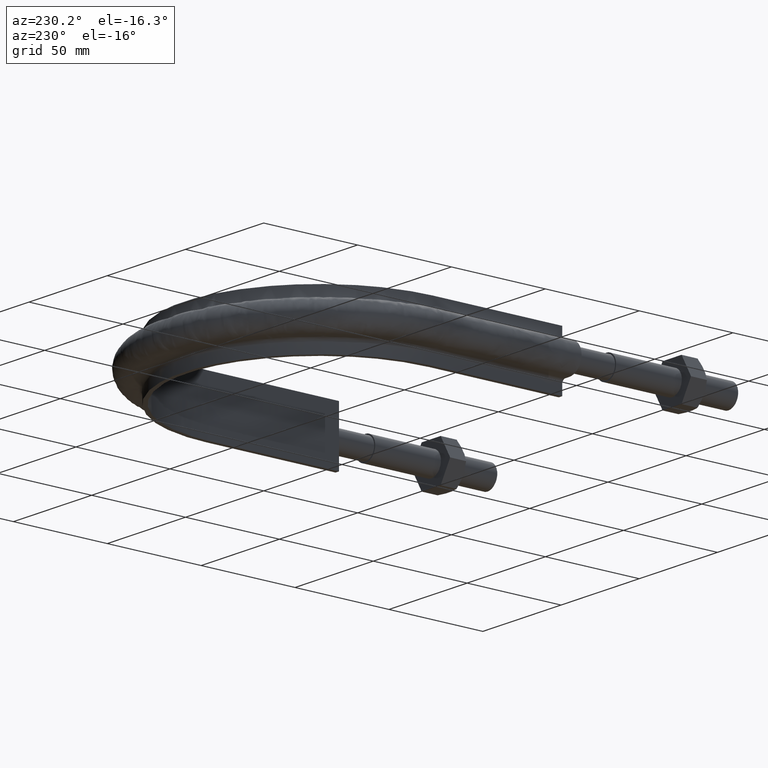
[diagram: clean part render]
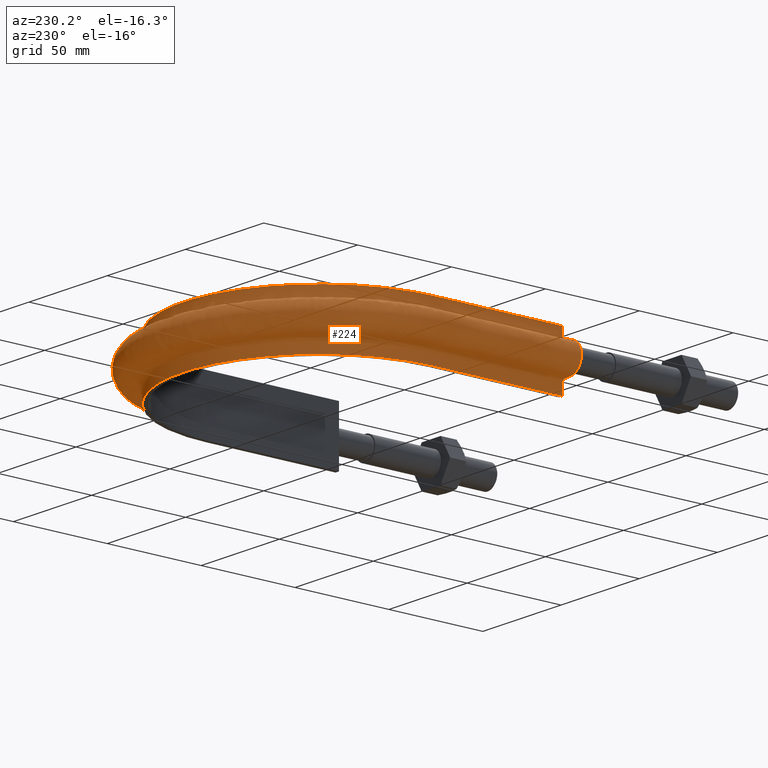
[diagram: same view with one face highlighted and labeled with its STEP entity id]
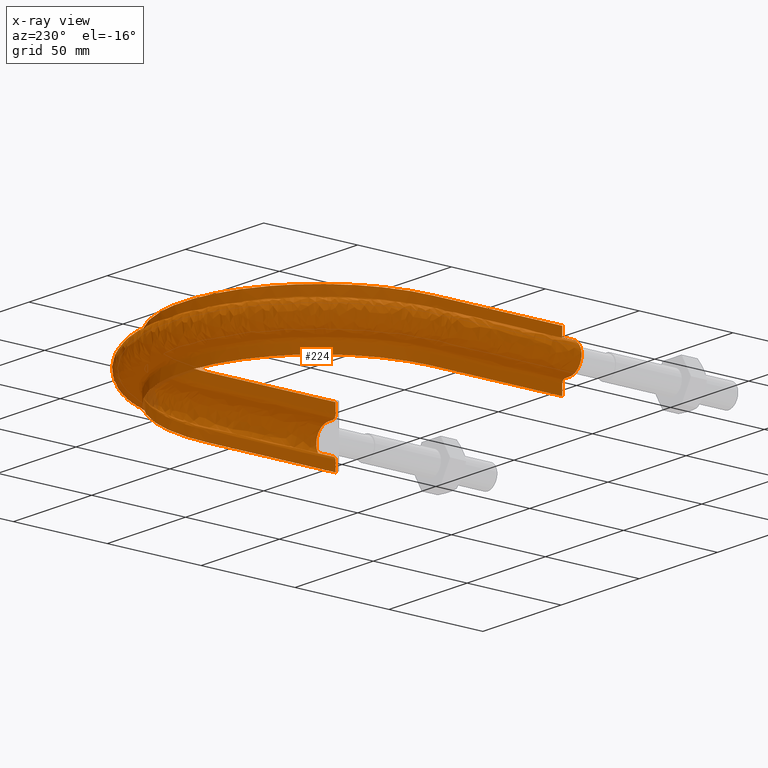
[diagram: x-ray of the same camera — body ghosted, the highlighted face saturated]
A machine part, auxiliary view. The second image highlights one B-rep face of the part: STEP entity #224.
The next image is the same camera in x-ray: the body ghosted, the highlighted face saturated — about 1% of this face is hidden behind the body in this view.
In plain terms, the highlighted face is a freeform B-spline surface patch.
Its self-contained STEP definition (entity closure, byte-faithful):
#224 = ADVANCED_FACE( '', ( #273 ), #274, .F. );
#273 = FACE_OUTER_BOUND( '', #551, .T. );
#274 = B_SPLINE_SURFACE_WITH_KNOTS( '', 3, 3, ( ( #552, #553, #554, #555, #556, #557, #558, #559, #560, #561, #562, #563, #564, #565, #566, #567 ), ( #568, #569, #570, #571, #572, #573, #574, #575, #576, #577, #578, #579, #580, #581, #582, #583 ), ( #584, #585, #586, #587, #588, #589, #590, #591, #592, #593, #594, #595, #596, #597, #598, #599 ), ( #600, #601, #602, #603, #604, #605, #606, #607, #608, #609, #610, #611, #612, #613, #614, #615 ), ( #616, #617, #618, #619, #620, #621, #622, #623, #624, #625, #626, #627, #628, #629, #630, #631 ), ( #632, #633, #634, #635, #636, #637, #638, #639, #640, #641, #642, #643, #644, #645, #646, #647 ), ( #648, #649, #650, #651, #652, #653, #654, #655, #656, #657, #658, #659, #660, #661, #662, #663 ), ( #664, #665, #666, #667, #668, #669, #670, #671, #672, #673, #674, #675, #676, #677, #678, #679 ), ( #680, #681, #682, #683, #684, #685, #686, #687, #688, #689, #690, #691, #692, #693, #694, #695 ), ( #696, #697, #698, #699, #700, #701, #702, #703, #704, #705, #706, #707, #708, #709, #710, #711 ), ( #712, #713, #714, #715, #716, #717, #718, #719, #720, #721, #722, #723, #724, #725, #726, #727 ), ( #728, #729, #730, #731, #732, #733, #734, #735, #736, #737, #738, #739, #740, #741, #742, #743 ), ( #744, #745, #746, #747, #748, #749, #750, #751, #752, #753, #754, #755, #756, #757, #758, #759 ), ( #760, #761, #762, #763, #764, #765, #766, #767, #768, #769, #770, #771, #772, #773, #774, #775 ), ( #776, #777, #778, #779, #780, #781, #782, #783, #784, #785, #786, #787, #788, #789, #790, #791 ), ( #792, #793, #794, #795, #796, #797, #798, #799, #800, #801, #802, #803, #804, #805, #806, #807 ), ( #808, #809, #810, #811, #812, #813, #814, #815, #816, #817, #818, #819, #820, #821, #822, #823 ), ( #824, #825, #826, #827, #828, #829, #830, #831, #832, #833, #834, #835, #836, #837, #838, #839 ), ( #840, #841, #842, #843, #844, #845, #846, #847, #848, #849, #850, #851, #852, #853, #854, #855 ), ( #856, #857, #858, #859, #860, #861, #862, #863, #864, #865, #866, #867, #868, #869, #870, #871 ), ( #872, #873, #874, #875, #876, #877, #878, #879, #880, #881, #882, #883, #884, #885, #886, #887 ), ( #888, #889, #890, #891, #892, #893, #894, #895, #896, #897, #898, #899, #900, #901, #902, #903 ), ( #904, #905, #906, #907, #908, #909, #910, #911, #912, #913, #914, #915, #916, #917, #918, #919 ), ( #920, #921, #922, #923, #924, #925, #926, #927, #928, #929, #930, #931, #932, #933, #934, #935 ), ( #936, #937, #938, #939, #940, #941, #942, #943, #944, #945, #946, #947, #948, #949, #950, #951 ), ( #952, #953, #954, #955, #956, #957, #958, #959, #960, #961, #962, #963, #964, #965, #966, #967 ), ( #968, #969, #970, #971, #972, #973, #974, #975, #976, #977, #978, #979, #980, #981, #982, #983 ), ( #984, #985, #986, #987, #988, #989, #990, #991, #992, #993, #994, #995, #996, #997, #998, #999 ), ( #1000, #1001, #1002, #1003, #1004, #1005, #1006, #1007, #1008, #1009, #1010, #1011, #1012, #1013, #1014, #1015 ), ( #1016, #1017, #1018, #1019, #1020, #1021, #1022, #1023, #1024, #1025, #1026, #1027, #1028, #1029, #1030, #1031 ), ( #1032, #1033, #1034, #1035, #1036, #1037, #1038, #1039, #1040, #1041, #1042, #1043, #1044, #1045, #1046, #1047 ) ), .UNSPECIFIED., .F., .F., .F., ( 4, 3, 1, 1, 1, 3, 3, 1, 1, 1, 3, 3, 1, 1, 1, 3, 4 ), ( 4, 3, 1, 1, 1, 1, 1, 1, 3, 4 ), ( 0.105263157894737, 0.157894736842105, 0.210526315789474, 0.263157894736842, 0.315789473684211, 0.368421052631579, 0.421052631578947, 0.473684210526316, 0.526315789473684, 0.578947368421053, 0.631578947368421, 0.684210526315789, 0.736842105263158, 0.789473684210526, 0.842105263157895, 0.894736842105263, 0.947368421052632 ), ( 0.000000000000000, 1.00000000000000, 2.00000000000000, 3.00000000000000, 4.00000000000000, 5.00000000000000, 6.00000000000000, 7.00000000000000, 8.00000000000000, 9.00000000000000 ), .UNSPECIFIED. );
#551 = EDGE_LOOP( '', ( #1356, #1357, #1358, #1359 ) );
#552 = CARTESIAN_POINT( '', ( 72.4500000000000, 84.7100000000000, -15.0000000000000 ) );
#553 = CARTESIAN_POINT( '', ( 72.4500000000000, 107.726666666667, -15.0000000000000 ) );
#554 = CARTESIAN_POINT( '', ( 72.4500000000000, 130.743333333333, -15.0000000000000 ) );
#555 = CARTESIAN_POINT( '', ( 72.4500000000000, 153.760000000000, -15.0000000000000 ) );
#556 = CARTESIAN_POINT( '', ( 72.4500000000000, 164.584175230504, -15.0000000000000 ) );
#557 = CARTESIAN_POINT( '', ( 67.5035108460798, 186.273453800089, -15.0000000000000 ) );
#558 = CARTESIAN_POINT( '', ( 46.7138789159023, 212.335910248336, -15.0000000000000 ) );
#559 = CARTESIAN_POINT( '', ( 16.6719903583027, 226.805050635421, -15.0000000000000 ) );
#560 = CARTESIAN_POINT( '', ( -16.6719903583025, 226.805050635421, -15.0000000000000 ) );
#561 = CARTESIAN_POINT( '', ( -46.7138789159022, 212.335910248336, -15.0000000000000 ) );
#562 = CARTESIAN_POINT( '', ( -67.5035108460798, 186.273453800089, -15.0000000000000 ) );
#563 = CARTESIAN_POINT( '', ( -72.4500000000000, 164.584175230504, -15.0000000000000 ) );
#564 = CARTESIAN_POINT( '', ( -72.4500000000000, 153.760000000000, -15.0000000000000 ) );
#565 = CARTESIAN_POINT( '', ( -72.4500000000000, 130.743333333333, -15.0000000000000 ) );
#566 = CARTESIAN_POINT( '', ( -72.4500000000000, 107.726666666667, -15.0000000000000 ) );
#567 = CARTESIAN_POINT( '', ( -72.4500000000000, 84.7100000000000, -15.0000000000000 ) );
#568 = CARTESIAN_POINT( '', ( 72.4500000000000, 84.7100000000000, -13.2666666666667 ) );
#569 = CARTESIAN_POINT( '', ( 72.4500000000000, 107.726666666667, -13.2666666666667 ) );
#570 = CARTESIAN_POINT( '', ( 72.4500000000000, 130.743333333333, -13.2666666666667 ) );
#571 = CARTESIAN_POINT( '', ( 72.4500000000000, 153.760000000000, -13.2666666666667 ) );
#572 = CARTESIAN_POINT( '', ( 72.4500000000000, 164.584175230504, -13.2666666666667 ) );
#573 = CARTESIAN_POINT( '', ( 67.5035108460798, 186.273453800089, -13.2666666666667 ) );
#574 = CARTESIAN_POINT( '', ( 46.7138789159023, 212.335910248336, -13.2666666666667 ) );
#575 = CARTESIAN_POINT( '', ( 16.6719903583027, 226.805050635421, -13.2666666666667 ) );
#576 = CARTESIAN_POINT( '', ( -16.6719903583025, 226.805050635421, -13.2666666666667 ) );
#577 = CARTESIAN_POINT( '', ( -46.7138789159022, 212.335910248336, -13.2666666666667 ) );
#578 = CARTESIAN_POINT( '', ( -67.5035108460798, 186.273453800089, -13.2666666666667 ) );
#579 = CARTESIAN_POINT( '', ( -72.4500000000000, 164.584175230504, -13.2666666666667 ) );
#580 = CARTESIAN_POINT( '', ( -72.4500000000000, 153.760000000000, -13.2666666666667 ) );
#581 = CARTESIAN_POINT( '', ( -72.4500000000000, 130.743333333333, -13.2666666666667 ) );
#582 = CARTESIAN_POINT( '', ( -72.4500000000000, 107.726666666667, -13.2666666666667 ) );
#583 = CARTESIAN_POINT( '', ( -72.4500000000000, 84.7100000000000, -13.2666666666667 ) );
#584 = CARTESIAN_POINT( '', ( 72.4500000000000, 84.7100000000000, -11.5333333333333 ) );
#585 = CARTESIAN_POINT( '', ( 72.4500000000000, 107.726666666667, -11.5333333333333 ) );
#586 = CARTESIAN_POINT( '', ( 72.4500000000000, 130.743333333333, -11.5333333333333 ) );
#587 = CARTESIAN_POINT( '', ( 72.4500000000000, 153.760000000000, -11.5333333333333 ) );
#588 = CARTESIAN_POINT( '', ( 72.4500000000000, 164.584175230504, -11.5333333333333 ) );
#589 = CARTESIAN_POINT( '', ( 67.5035108460798, 186.273453800089, -11.5333333333333 ) );
#590 = CARTESIAN_POINT( '', ( 46.7138789159023, 212.335910248336, -11.5333333333333 ) );
#591 = CARTESIAN_POINT( '', ( 16.6719903583027, 226.805050635421, -11.5333333333333 ) );
#592 = CARTESIAN_POINT( '', ( -16.6719903583025, 226.805050635421, -11.5333333333333 ) );
#593 = CARTESIAN_POINT( '', ( -46.7138789159022, 212.335910248336, -11.5333333333333 ) );
#594 = CARTESIAN_POINT( '', ( -67.5035108460798, 186.273453800089, -11.5333333333333 ) );
#595 = CARTESIAN_POINT( '', ( -72.4500000000000, 164.584175230504, -11.5333333333333 ) );
#596 = CARTESIAN_POINT( '', ( -72.4500000000000, 153.760000000000, -11.5333333333333 ) );
#597 = CARTESIAN_POINT( '', ( -72.4500000000000, 130.743333333333, -11.5333333333333 ) );
#598 = CARTESIAN_POINT( '', ( -72.4500000000000, 107.726666666667, -11.5333333333333 ) );
#599 = CARTESIAN_POINT( '', ( -72.4500000000000, 84.7100000000000, -11.5333333333333 ) );
#600 = CARTESIAN_POINT( '', ( 72.4500000000000, 84.7100000000000, -9.79999999999999 ) );
#601 = CARTESIAN_POINT( '', ( 72.4500000000000, 107.726666666667, -9.79999999999999 ) );
#602 = CARTESIAN_POINT( '', ( 72.4500000000000, 130.743333333333, -9.79999999999999 ) );
#603 = CARTESIAN_POINT( '', ( 72.4500000000000, 153.760000000000, -9.79999999999999 ) );
#604 = CARTESIAN_POINT( '', ( 72.4500000000000, 164.584175230504, -9.79999999999999 ) );
#605 = CARTESIAN_POINT( '', ( 67.5035108460798, 186.273453800089, -9.80000000000000 ) );
#606 = CARTESIAN_POINT( '', ( 46.7138789159023, 212.335910248336, -9.79999999999998 ) );
#607 = CARTESIAN_POINT( '', ( 16.6719903583027, 226.805050635421, -9.80000000000000 ) );
#608 = CARTESIAN_POINT( '', ( -16.6719903583025, 226.805050635421, -9.79999999999999 ) );
#609 = CARTESIAN_POINT( '', ( -46.7138789159022, 212.335910248336, -9.79999999999999 ) );
#610 = CARTESIAN_POINT( '', ( -67.5035108460798, 186.273453800089, -9.79999999999999 ) );
#611 = CARTESIAN_POINT( '', ( -72.4500000000000, 164.584175230504, -9.79999999999999 ) );
#612 = CARTESIAN_POINT( '', ( -72.4500000000000, 153.760000000000, -9.79999999999999 ) );
#613 = CARTESIAN_POINT( '', ( -72.4500000000000, 130.743333333333, -9.79999999999999 ) );
#614 = CARTESIAN_POINT( '', ( -72.4500000000000, 107.726666666667, -9.79999999999999 ) );
#615 = CARTESIAN_POINT( '', ( -72.4500000000000, 84.7100000000000, -9.79999999999999 ) );
#616 = CARTESIAN_POINT( '', ( 72.4500000000000, 84.7100000000000, -9.53823584172332 ) );
#617 = CARTESIAN_POINT( '', ( 72.4500000000000, 107.726666666667, -9.53823584172332 ) );
#618 = CARTESIAN_POINT( '', ( 72.4500000000000, 130.743333333333, -9.53823584172332 ) );
#619 = CARTESIAN_POINT( '', ( 72.4500000000000, 153.760000000000, -9.53823584172332 ) );
#620 = CARTESIAN_POINT( '', ( 72.4500000000000, 164.584175230504, -9.53823584172332 ) );
#621 = CARTESIAN_POINT( '', ( 67.5035108460798, 186.273453800089, -9.53823584172334 ) );
#622 = CARTESIAN_POINT( '', ( 46.7138789159023, 212.335910248336, -9.53823584172331 ) );
#623 = CARTESIAN_POINT( '', ( 16.6719903583027, 226.805050635421, -9.53823584172333 ) );
#624 = CARTESIAN_POINT( '', ( -16.6719903583025, 226.805050635421, -9.53823584172332 ) );
#625 = CARTESIAN_POINT( '', ( -46.7138789159022, 212.335910248336, -9.53823584172333 ) );
#626 = CARTESIAN_POINT( '', ( -67.5035108460798, 186.273453800089, -9.53823584172333 ) );
#627 = CARTESIAN_POINT( '', ( -72.4500000000000, 164.584175230504, -9.53823584172332 ) );
#628 = CARTESIAN_POINT( '', ( -72.4500000000000, 153.760000000000, -9.53823584172332 ) );
#629 = CARTESIAN_POINT( '', ( -72.4500000000000, 130.743333333333, -9.53823584172332 ) );
#630 = CARTESIAN_POINT( '', ( -72.4500000000000, 107.726666666667, -9.53823584172332 ) );
#631 = CARTESIAN_POINT( '', ( -72.4500000000000, 84.7100000000000, -9.53823584172332 ) );
#632 = CARTESIAN_POINT( '', ( 72.5541362568359, 84.7100000000000, -9.01470752517000 ) );
#633 = CARTESIAN_POINT( '', ( 72.5541362568359, 107.726666666667, -9.01470752517000 ) );
#634 = CARTESIAN_POINT( '', ( 72.5541362568359, 130.743333333333, -9.01470752517000 ) );
#635 = CARTESIAN_POINT( '', ( 72.5541362568359, 153.760000000000, -9.01470752517000 ) );
#636 = CARTESIAN_POINT( '', ( 72.5541362568359, 164.600020844551, -9.01470752517000 ) );
#637 = CARTESIAN_POINT( '', ( 67.6005372497071, 186.320053916949, -9.01470752517001 ) );
#638 = CARTESIAN_POINT( '', ( 46.7810232705274, 212.420139589218, -9.01470752516999 ) );
#639 = CARTESIAN_POINT( '', ( 16.6959539010206, 226.910035179395, -9.01470752517000 ) );
#640 = CARTESIAN_POINT( '', ( -16.6959539010205, 226.910035179395, -9.01470752517000 ) );
#641 = CARTESIAN_POINT( '', ( -46.7810232705273, 212.420139589218, -9.01470752517000 ) );
#642 = CARTESIAN_POINT( '', ( -67.6005372497070, 186.320053916949, -9.01470752517000 ) );
#643 = CARTESIAN_POINT( '', ( -72.5541362568359, 164.600020844551, -9.01470752517000 ) );
#644 = CARTESIAN_POINT( '', ( -72.5541362568359, 153.760000000000, -9.01470752517000 ) );
#645 = CARTESIAN_POINT( '', ( -72.5541362568359, 130.743333333333, -9.01470752517000 ) );
#646 = CARTESIAN_POINT( '', ( -72.5541362568359, 107.726666666667, -9.01470752517000 ) );
#647 = CARTESIAN_POINT( '', ( -72.5541362568359, 84.7100000000000, -9.01470752517000 ) );
#648 = CARTESIAN_POINT( '', ( 72.9989687109389, 84.7100000000000, -8.34896871093886 ) );
#649 = CARTESIAN_POINT( '', ( 72.9989687109389, 107.726666666667, -8.34896871093886 ) );
#650 = CARTESIAN_POINT( '', ( 72.9989687109389, 130.743333333333, -8.34896871093886 ) );
#651 = CARTESIAN_POINT( '', ( 72.9989687109389, 153.760000000000, -8.34896871093886 ) );
#652 = CARTESIAN_POINT( '', ( 72.9989687109389, 164.667707581115, -8.34896871093886 ) );
#653 = CARTESIAN_POINT( '', ( 68.0149989804211, 186.519112774777, -8.34896871093888 ) );
#654 = CARTESIAN_POINT( '', ( 47.0678396873504, 212.779936892776, -8.34896871093885 ) );
#655 = CARTESIAN_POINT( '', ( 16.7983174950284, 227.358491209583, -8.34896871093887 ) );
#656 = CARTESIAN_POINT( '', ( -16.7983174950283, 227.358491209583, -8.34896871093886 ) );
#657 = CARTESIAN_POINT( '', ( -47.0678396873504, 212.779936892776, -8.34896871093886 ) );
#658 = CARTESIAN_POINT( '', ( -68.0149989804210, 186.519112774777, -8.34896871093886 ) );
#659 = CARTESIAN_POINT( '', ( -72.9989687109389, 164.667707581115, -8.34896871093886 ) );
#660 = CARTESIAN_POINT( '', ( -72.9989687109388, 153.760000000000, -8.34896871093886 ) );
#661 = CARTESIAN_POINT( '', ( -72.9989687109388, 130.743333333333, -8.34896871093886 ) );
#662 = CARTESIAN_POINT( '', ( -72.9989687109388, 107.726666666667, -8.34896871093886 ) );
#663 = CARTESIAN_POINT( '', ( -72.9989687109389, 84.7100000000000, -8.34896871093886 ) );
#664 = CARTESIAN_POINT( '', ( 73.6647075251700, 84.7100000000000, -7.90413625683590 ) );
#665 = CARTESIAN_POINT( '', ( 73.6647075251700, 107.726666666667, -7.90413625683590 ) );
#666 = CARTESIAN_POINT( '', ( 73.6647075251700, 130.743333333333, -7.90413625683590 ) );
#667 = CARTESIAN_POINT( '', ( 73.6647075251700, 153.760000000000, -7.90413625683590 ) );
#668 = CARTESIAN_POINT( '', ( 73.6647075251700, 164.769007941112, -7.90413625683590 ) );
#669 = CARTESIAN_POINT( '', ( 68.6352847950119, 186.817025408512, -7.90413625683591 ) );
#670 = CARTESIAN_POINT( '', ( 47.4970907895949, 213.318411610672, -7.90413625683589 ) );
#671 = CARTESIAN_POINT( '', ( 16.9515154397077, 228.029653088664, -7.90413625683590 ) );
#672 = CARTESIAN_POINT( '', ( -16.9515154397075, 228.029653088664, -7.90413625683589 ) );
#673 = CARTESIAN_POINT( '', ( -47.4970907895948, 213.318411610672, -7.90413625683590 ) );
#674 = CARTESIAN_POINT( '', ( -68.6352847950119, 186.817025408512, -7.90413625683590 ) );
#675 = CARTESIAN_POINT( '', ( -73.6647075251700, 164.769007941112, -7.90413625683590 ) );
#676 = CARTESIAN_POINT( '', ( -73.6647075251700, 153.760000000000, -7.90413625683590 ) );
#677 = CARTESIAN_POINT( '', ( -73.6647075251700, 130.743333333333, -7.90413625683590 ) );
#678 = CARTESIAN_POINT( '', ( -73.6647075251700, 107.726666666667, -7.90413625683590 ) );
#679 = CARTESIAN_POINT( '', ( -73.6647075251700, 84.7100000000000, -7.90413625683590 ) );
#680 = CARTESIAN_POINT( '', ( 74.1882358417234, 84.7100000000000, -7.79999999999999 ) );
#681 = CARTESIAN_POINT( '', ( 74.1882358417233, 107.726666666667, -7.79999999999999 ) );
#682 = CARTESIAN_POINT( '', ( 74.1882358417233, 130.743333333333, -7.79999999999999 ) );
#683 = CARTESIAN_POINT( '', ( 74.1882358417234, 153.760000000000, -7.79999999999999 ) );
#684 = CARTESIAN_POINT( '', ( 74.1882358417234, 164.848669222387, -7.79999999999999 ) );
#685 = CARTESIAN_POINT( '', ( 69.1230694657461, 187.051300016339, -7.80000000000000 ) );
#686 = CARTESIAN_POINT( '', ( 47.8346482552749, 213.741861102486, -7.79999999999998 ) );
#687 = CARTESIAN_POINT( '', ( 17.0719883043850, 228.557446032652, -7.80000000000000 ) );
#688 = CARTESIAN_POINT( '', ( -17.0719883043849, 228.557446032652, -7.79999999999998 ) );
#689 = CARTESIAN_POINT( '', ( -47.8346482552749, 213.741861102486, -7.79999999999999 ) );
#690 = CARTESIAN_POINT( '', ( -69.1230694657460, 187.051300016339, -7.79999999999999 ) );
#691 = CARTESIAN_POINT( '', ( -74.1882358417233, 164.848669222387, -7.79999999999999 ) );
#692 = CARTESIAN_POINT( '', ( -74.1882358417233, 153.760000000000, -7.79999999999999 ) );
#693 = CARTESIAN_POINT( '', ( -74.1882358417233, 130.743333333333, -7.79999999999999 ) );
#694 = CARTESIAN_POINT( '', ( -74.1882358417233, 107.726666666667, -7.79999999999999 ) );
#695 = CARTESIAN_POINT( '', ( -74.1882358417233, 84.7100000000000, -7.79999999999999 ) );
#696 = CARTESIAN_POINT( '', ( 74.4500000000000, 84.7100000000000, -7.79999999999999 ) );
#697 = CARTESIAN_POINT( '', ( 74.4500000000000, 107.726666666667, -7.79999999999999 ) );
#698 = CARTESIAN_POINT( '', ( 74.4500000000000, 130.743333333333, -7.79999999999999 ) );
#699 = CARTESIAN_POINT( '', ( 74.4500000000000, 153.760000000000, -7.79999999999999 ) );
#700 = CARTESIAN_POINT( '', ( 74.4500000000000, 164.888499863024, -7.79999999999999 ) );
#701 = CARTESIAN_POINT( '', ( 69.3669618011131, 187.168437320253, -7.80000000000000 ) );
#702 = CARTESIAN_POINT( '', ( 48.0034269881149, 213.953585848393, -7.79999999999998 ) );
#703 = CARTESIAN_POINT( '', ( 17.1322247367237, 228.821342504646, -7.80000000000000 ) );
#704 = CARTESIAN_POINT( '', ( -17.1322247367236, 228.821342504646, -7.79999999999998 ) );
#705 = CARTESIAN_POINT( '', ( -48.0034269881148, 213.953585848393, -7.79999999999999 ) );
#706 = CARTESIAN_POINT( '', ( -69.3669618011131, 187.168437320253, -7.79999999999999 ) );
#707 = CARTESIAN_POINT( '', ( -74.4500000000000, 164.888499863024, -7.79999999999999 ) );
#708 = CARTESIAN_POINT( '', ( -74.4500000000000, 153.760000000000, -7.79999999999999 ) );
#709 = CARTESIAN_POINT( '', ( -74.4500000000000, 130.743333333333, -7.79999999999999 ) );
#710 = CARTESIAN_POINT( '', ( -74.4500000000000, 107.726666666667, -7.79999999999999 ) );
#711 = CARTESIAN_POINT( '', ( -74.4500000000000, 84.7100000000000, -7.79999999999999 ) );
#712 = CARTESIAN_POINT( '', ( 75.3000000000000, 84.7100000000000, -7.79999999999999 ) );
#713 = CARTESIAN_POINT( '', ( 75.3000000000000, 107.726666666667, -7.79999999999999 ) );
#714 = CARTESIAN_POINT( '', ( 75.3000000000000, 130.743333333333, -7.79999999999999 ) );
#715 = CARTESIAN_POINT( '', ( 75.3000000000000, 153.760000000000, -7.79999999999999 ) );
#716 = CARTESIAN_POINT( '', ( 75.3000000000000, 165.017837831845, -7.79999999999999 ) );
#717 = CARTESIAN_POINT( '', ( 70.1589284570022, 187.548805316322, -7.80000000000000 ) );
#718 = CARTESIAN_POINT( '', ( 48.5514849188053, 214.641097978417, -7.79999999999998 ) );
#719 = CARTESIAN_POINT( '', ( 17.3278243475527, 229.678266549066, -7.80000000000000 ) );
#720 = CARTESIAN_POINT( '', ( -17.3278243475525, 229.678266549066, -7.79999999999999 ) );
#721 = CARTESIAN_POINT( '', ( -48.5514849188052, 214.641097978417, -7.79999999999999 ) );
#722 = CARTESIAN_POINT( '', ( -70.1589284570022, 187.548805316322, -7.79999999999999 ) );
#723 = CARTESIAN_POINT( '', ( -75.3000000000000, 165.017837831845, -7.79999999999999 ) );
#724 = CARTESIAN_POINT( '', ( -75.3000000000000, 153.760000000000, -7.79999999999999 ) );
#725 = CARTESIAN_POINT( '', ( -75.3000000000000, 130.743333333333, -7.79999999999999 ) );
#726 = CARTESIAN_POINT( '', ( -75.3000000000000, 107.726666666667, -7.79999999999999 ) );
#727 = CARTESIAN_POINT( '', ( -75.3000000000000, 84.7100000000000, -7.79999999999999 ) );
#728 = CARTESIAN_POINT( '', ( 76.1500000000000, 84.7100000000000, -7.79999999999999 ) );
#729 = CARTESIAN_POINT( '', ( 76.1500000000000, 107.726666666667, -7.79999999999999 ) );
#730 = CARTESIAN_POINT( '', ( 76.1500000000000, 130.743333333333, -7.79999999999999 ) );
#731 = CARTESIAN_POINT( '', ( 76.1500000000000, 153.760000000000, -7.79999999999999 ) );
#732 = CARTESIAN_POINT( '', ( 76.1500000000000, 165.147175800666, -7.79999999999999 ) );
#733 = CARTESIAN_POINT( '', ( 70.9508951128914, 187.929173312392, -7.80000000000000 ) );
#734 = CARTESIAN_POINT( '', ( 49.0995428494957, 215.328610108441, -7.79999999999998 ) );
#735 = CARTESIAN_POINT( '', ( 17.5234239583816, 230.535190593487, -7.80000000000000 ) );
#736 = CARTESIAN_POINT( '', ( -17.5234239583815, 230.535190593487, -7.79999999999999 ) );
#737 = CARTESIAN_POINT( '', ( -49.0995428494956, 215.328610108441, -7.79999999999999 ) );
#738 = CARTESIAN_POINT( '', ( -70.9508951128913, 187.929173312392, -7.79999999999999 ) );
#739 = CARTESIAN_POINT( '', ( -76.1500000000000, 165.147175800666, -7.79999999999999 ) );
#740 = CARTESIAN_POINT( '', ( -76.1500000000000, 153.760000000000, -7.79999999999999 ) );
#741 = CARTESIAN_POINT( '', ( -76.1500000000000, 130.743333333333, -7.79999999999999 ) );
#742 = CARTESIAN_POINT( '', ( -76.1500000000000, 107.726666666667, -7.79999999999999 ) );
#743 = CARTESIAN_POINT( '', ( -76.1500000000000, 84.7100000000000, -7.79999999999999 ) );
#744 = CARTESIAN_POINT( '', ( 77.0000000000000, 84.7100000000000, -7.79999999999999 ) );
#745 = CARTESIAN_POINT( '', ( 77.0000000000000, 107.726666666667, -7.79999999999999 ) );
#746 = CARTESIAN_POINT( '', ( 77.0000000000000, 130.743333333333, -7.79999999999999 ) );
#747 = CARTESIAN_POINT( '', ( 77.0000000000000, 153.760000000000, -7.79999999999999 ) );
#748 = CARTESIAN_POINT( '', ( 77.0000000000001, 165.276513769487, -7.79999999999999 ) );
#749 = CARTESIAN_POINT( '', ( 71.7428617687805, 188.309541308462, -7.80000000000000 ) );
#750 = CARTESIAN_POINT( '', ( 49.6476007801860, 216.016122238465, -7.79999999999998 ) );
#751 = CARTESIAN_POINT( '', ( 17.7190235692106, 231.392114637907, -7.80000000000000 ) );
#752 = CARTESIAN_POINT( '', ( -17.7190235692104, 231.392114637907, -7.79999999999999 ) );
#753 = CARTESIAN_POINT( '', ( -49.6476007801860, 216.016122238465, -7.79999999999999 ) );
#754 = CARTESIAN_POINT( '', ( -71.7428617687805, 188.309541308462, -7.79999999999999 ) );
#755 = CARTESIAN_POINT( '', ( -77.0000000000000, 165.276513769487, -7.79999999999999 ) );
#756 = CARTESIAN_POINT( '', ( -77.0000000000000, 153.760000000000, -7.79999999999999 ) );
#757 = CARTESIAN_POINT( '', ( -77.0000000000000, 130.743333333333, -7.79999999999999 ) );
#758 = CARTESIAN_POINT( '', ( -77.0000000000000, 107.726666666667, -7.79999999999999 ) );
#759 = CARTESIAN_POINT( '', ( -77.0000000000000, 84.7100000000000, -7.79999999999999 ) );
#760 = CARTESIAN_POINT( '', ( 79.0373902247172, 84.7100000000000, -7.79999999999997 ) );
#761 = CARTESIAN_POINT( '', ( 79.0373902247172, 107.726666666667, -7.79999999999997 ) );
#762 = CARTESIAN_POINT( '', ( 79.0373902247172, 130.743333333333, -7.79999999999997 ) );
#763 = CARTESIAN_POINT( '', ( 79.0373902247172, 153.760000000000, -7.79999999999997 ) );
#764 = CARTESIAN_POINT( '', ( 79.0373902247172, 165.586527785206, -7.79999999999997 ) );
#765 = CARTESIAN_POINT( '', ( 73.6411501487929, 189.221256646094, -7.79999999999998 ) );
#766 = CARTESIAN_POINT( '', ( 50.9612570985005, 217.664040465625, -7.79999999999996 ) );
#767 = CARTESIAN_POINT( '', ( 18.1878620810475, 233.446101310175, -7.79999999999998 ) );
#768 = CARTESIAN_POINT( '', ( -18.1878620810474, 233.446101310175, -7.79999999999997 ) );
#769 = CARTESIAN_POINT( '', ( -50.9612570985004, 217.664040465625, -7.79999999999998 ) );
#770 = CARTESIAN_POINT( '', ( -73.6411501487928, 189.221256646094, -7.79999999999997 ) );
#771 = CARTESIAN_POINT( '', ( -79.0373902247172, 165.586527785206, -7.79999999999997 ) );
#772 = CARTESIAN_POINT( '', ( -79.0373902247172, 153.760000000000, -7.79999999999997 ) );
#773 = CARTESIAN_POINT( '', ( -79.0373902247172, 130.743333333333, -7.79999999999997 ) );
#774 = CARTESIAN_POINT( '', ( -79.0373902247172, 107.726666666667, -7.79999999999997 ) );
#775 = CARTESIAN_POINT( '', ( -79.0373902247172, 84.7100000000000, -7.79999999999997 ) );
#776 = CARTESIAN_POINT( '', ( 83.1121706741516, 84.7100000000000, -6.11217067415152 ) );
#777 = CARTESIAN_POINT( '', ( 83.1121706741516, 107.726666666667, -6.11217067415152 ) );
#778 = CARTESIAN_POINT( '', ( 83.1121706741516, 130.743333333333, -6.11217067415152 ) );
#779 = CARTESIAN_POINT( '', ( 83.1121706741516, 153.760000000000, -6.11217067415152 ) );
#780 = CARTESIAN_POINT( '', ( 83.1121706741516, 166.206555816643, -6.11217067415152 ) );
#781 = CARTESIAN_POINT( '', ( 77.4377269088175, 191.044687321359, -6.11217067415152 ) );
#782 = CARTESIAN_POINT( '', ( 53.5885697351293, 220.959876919944, -6.11217067415151 ) );
#783 = CARTESIAN_POINT( '', ( 19.1255391047213, 237.554074654711, -6.11217067415152 ) );
#784 = CARTESIAN_POINT( '', ( -19.1255391047212, 237.554074654711, -6.11217067415151 ) );
#785 = CARTESIAN_POINT( '', ( -53.5885697351293, 220.959876919944, -6.11217067415152 ) );
#786 = CARTESIAN_POINT( '', ( -77.4377269088175, 191.044687321359, -6.11217067415152 ) );
#787 = CARTESIAN_POINT( '', ( -83.1121706741515, 166.206555816643, -6.11217067415152 ) );
#788 = CARTESIAN_POINT( '', ( -83.1121706741515, 153.760000000000, -6.11217067415152 ) );
#789 = CARTESIAN_POINT( '', ( -83.1121706741515, 130.743333333333, -6.11217067415152 ) );
#790 = CARTESIAN_POINT( '', ( -83.1121706741515, 107.726666666667, -6.11217067415152 ) );
#791 = CARTESIAN_POINT( '', ( -83.1121706741515, 84.7100000000000, -6.11217067415152 ) );
#792 = CARTESIAN_POINT( '', ( 85.6439146629242, 84.7100000000000, -2.58929722408949E-015 ) );
#793 = CARTESIAN_POINT( '', ( 85.6439146629242, 107.726666666667, -2.58929722408949E-015 ) );
#794 = CARTESIAN_POINT( '', ( 85.6439146629242, 130.743333333333, -2.58929722408949E-015 ) );
#795 = CARTESIAN_POINT( '', ( 85.6439146629242, 153.760000000000, -2.58929722408949E-015 ) );
#796 = CARTESIAN_POINT( '', ( 85.6439146629242, 166.591791846152, -2.58929722408949E-015 ) );
#797 = CARTESIAN_POINT( '', ( 79.7966172857066, 192.177621894972, -2.58929722408950E-015 ) );
#798 = CARTESIAN_POINT( '', ( 55.2209725251582, 223.007647158058, -2.58929722408949E-015 ) );
#799 = CARTESIAN_POINT( '', ( 19.7081369152183, 240.106442064472, -2.58929722408950E-015 ) );
#800 = CARTESIAN_POINT( '', ( -19.7081369152182, 240.106442064472, -2.58929722408949E-015 ) );
#801 = CARTESIAN_POINT( '', ( -55.2209725251581, 223.007647158058, -2.58929722408949E-015 ) );
#802 = CARTESIAN_POINT( '', ( -79.7966172857065, 192.177621894972, -2.58929722408949E-015 ) );
#803 = CARTESIAN_POINT( '', ( -85.6439146629242, 166.591791846152, -2.58929722408949E-015 ) );
#804 = CARTESIAN_POINT( '', ( -85.6439146629242, 153.760000000000, -2.58929722408949E-015 ) );
#805 = CARTESIAN_POINT( '', ( -85.6439146629242, 130.743333333333, -2.58929722408949E-015 ) );
#806 = CARTESIAN_POINT( '', ( -85.6439146629242, 107.726666666667, -2.58929722408949E-015 ) );
#807 = CARTESIAN_POINT( '', ( -85.6439146629242, 84.7100000000000, -2.58929722408949E-015 ) );
#808 = CARTESIAN_POINT( '', ( 83.1121706741516, 84.7100000000000, 6.11217067415151 ) );
#809 = CARTESIAN_POINT( '', ( 83.1121706741516, 107.726666666667, 6.11217067415151 ) );
#810 = CARTESIAN_POINT( '', ( 83.1121706741516, 130.743333333333, 6.11217067415151 ) );
#811 = CARTESIAN_POINT( '', ( 83.1121706741516, 153.760000000000, 6.11217067415151 ) );
#812 = CARTESIAN_POINT( '', ( 83.1121706741516, 166.206555816643, 6.11217067415151 ) );
#813 = CARTESIAN_POINT( '', ( 77.4377269088175, 191.044687321359, 6.11217067415152 ) );
#814 = CARTESIAN_POINT( '', ( 53.5885697351293, 220.959876919944, 6.11217067415150 ) );
#815 = CARTESIAN_POINT( '', ( 19.1255391047213, 237.554074654711, 6.11217067415152 ) );
#816 = CARTESIAN_POINT( '', ( -19.1255391047212, 237.554074654711, 6.11217067415151 ) );
#817 = CARTESIAN_POINT( '', ( -53.5885697351293, 220.959876919944, 6.11217067415151 ) );
#818 = CARTESIAN_POINT( '', ( -77.4377269088175, 191.044687321359, 6.11217067415151 ) );
#819 = CARTESIAN_POINT( '', ( -83.1121706741515, 166.206555816643, 6.11217067415151 ) );
#820 = CARTESIAN_POINT( '', ( -83.1121706741515, 153.760000000000, 6.11217067415151 ) );
#821 = CARTESIAN_POINT( '', ( -83.1121706741515, 130.743333333333, 6.11217067415151 ) );
#822 = CARTESIAN_POINT( '', ( -83.1121706741515, 107.726666666667, 6.11217067415151 ) );
#823 = CARTESIAN_POINT( '', ( -83.1121706741515, 84.7100000000000, 6.11217067415151 ) );
#824 = CARTESIAN_POINT( '', ( 79.0373902247172, 84.7100000000000, 7.79999999999997 ) );
#825 = CARTESIAN_POINT( '', ( 79.0373902247172, 107.726666666667, 7.79999999999997 ) );
#826 = CARTESIAN_POINT( '', ( 79.0373902247172, 130.743333333333, 7.79999999999997 ) );
#827 = CARTESIAN_POINT( '', ( 79.0373902247172, 153.760000000000, 7.79999999999997 ) );
#828 = CARTESIAN_POINT( '', ( 79.0373902247172, 165.586527785206, 7.79999999999997 ) );
#829 = CARTESIAN_POINT( '', ( 73.6411501487929, 189.221256646094, 7.79999999999998 ) );
#830 = CARTESIAN_POINT( '', ( 50.9612570985005, 217.664040465625, 7.79999999999996 ) );
#831 = CARTESIAN_POINT( '', ( 18.1878620810475, 233.446101310175, 7.79999999999998 ) );
#832 = CARTESIAN_POINT( '', ( -18.1878620810474, 233.446101310175, 7.79999999999997 ) );
#833 = CARTESIAN_POINT( '', ( -50.9612570985004, 217.664040465625, 7.79999999999997 ) );
#834 = CARTESIAN_POINT( '', ( -73.6411501487928, 189.221256646094, 7.79999999999997 ) );
#835 = CARTESIAN_POINT( '', ( -79.0373902247172, 165.586527785206, 7.79999999999997 ) );
#836 = CARTESIAN_POINT( '', ( -79.0373902247172, 153.760000000000, 7.79999999999997 ) );
#837 = CARTESIAN_POINT( '', ( -79.0373902247172, 130.743333333333, 7.79999999999997 ) );
#838 = CARTESIAN_POINT( '', ( -79.0373902247172, 107.726666666667, 7.79999999999997 ) );
#839 = CARTESIAN_POINT( '', ( -79.0373902247172, 84.7100000000000, 7.79999999999997 ) );
#840 = CARTESIAN_POINT( '', ( 77.0000000000001, 84.7100000000000, 7.79999999999998 ) );
#841 = CARTESIAN_POINT( '', ( 77.0000000000000, 107.726666666667, 7.79999999999998 ) );
#842 = CARTESIAN_POINT( '', ( 77.0000000000000, 130.743333333333, 7.79999999999998 ) );
#843 = CARTESIAN_POINT( '', ( 77.0000000000001, 153.760000000000, 7.79999999999998 ) );
#844 = CARTESIAN_POINT( '', ( 77.0000000000001, 165.276513769487, 7.79999999999998 ) );
#845 = CARTESIAN_POINT( '', ( 71.7428617687805, 188.309541308462, 7.79999999999999 ) );
#846 = CARTESIAN_POINT( '', ( 49.6476007801860, 216.016122238465, 7.79999999999997 ) );
#847 = CARTESIAN_POINT( '', ( 17.7190235692106, 231.392114637908, 7.79999999999999 ) );
#848 = CARTESIAN_POINT( '', ( -17.7190235692104, 231.392114637908, 7.79999999999998 ) );
#849 = CARTESIAN_POINT( '', ( -49.6476007801860, 216.016122238465, 7.79999999999998 ) );
#850 = CARTESIAN_POINT( '', ( -71.7428617687805, 188.309541308462, 7.79999999999998 ) );
#851 = CARTESIAN_POINT( '', ( -77.0000000000000, 165.276513769487, 7.79999999999998 ) );
#852 = CARTESIAN_POINT( '', ( -77.0000000000000, 153.760000000000, 7.79999999999998 ) );
#853 = CARTESIAN_POINT( '', ( -77.0000000000000, 130.743333333333, 7.79999999999998 ) );
#854 = CARTESIAN_POINT( '', ( -77.0000000000000, 107.726666666667, 7.79999999999998 ) );
#855 = CARTESIAN_POINT( '', ( -77.0000000000000, 84.7100000000000, 7.79999999999998 ) );
#856 = CARTESIAN_POINT( '', ( 76.1500000000000, 84.7100000000000, 7.79999999999999 ) );
#857 = CARTESIAN_POINT( '', ( 76.1500000000000, 107.726666666667, 7.79999999999999 ) );
#858 = CARTESIAN_POINT( '', ( 76.1500000000000, 130.743333333333, 7.79999999999999 ) );
#859 = CARTESIAN_POINT( '', ( 76.1500000000000, 153.760000000000, 7.79999999999999 ) );
#860 = CARTESIAN_POINT( '', ( 76.1500000000000, 165.147175800666, 7.79999999999999 ) );
#861 = CARTESIAN_POINT( '', ( 70.9508951128914, 187.929173312392, 7.80000000000000 ) );
#862 = CARTESIAN_POINT( '', ( 49.0995428494956, 215.328610108441, 7.79999999999998 ) );
#863 = CARTESIAN_POINT( '', ( 17.5234239583816, 230.535190593487, 7.80000000000000 ) );
#864 = CARTESIAN_POINT( '', ( -17.5234239583815, 230.535190593487, 7.79999999999999 ) );
#865 = CARTESIAN_POINT( '', ( -49.0995428494956, 215.328610108441, 7.79999999999999 ) );
#866 = CARTESIAN_POINT( '', ( -70.9508951128913, 187.929173312392, 7.79999999999999 ) );
#867 = CARTESIAN_POINT( '', ( -76.1500000000000, 165.147175800666, 7.79999999999999 ) );
#868 = CARTESIAN_POINT( '', ( -76.1500000000000, 153.760000000000, 7.79999999999999 ) );
#869 = CARTESIAN_POINT( '', ( -76.1500000000000, 130.743333333333, 7.79999999999999 ) );
#870 = CARTESIAN_POINT( '', ( -76.1500000000000, 107.726666666667, 7.79999999999999 ) );
#871 = CARTESIAN_POINT( '', ( -76.1500000000000, 84.7100000000000, 7.79999999999999 ) );
#872 = CARTESIAN_POINT( '', ( 75.3000000000000, 84.7100000000000, 7.79999999999999 ) );
#873 = CARTESIAN_POINT( '', ( 75.3000000000000, 107.726666666667, 7.79999999999999 ) );
#874 = CARTESIAN_POINT( '', ( 75.3000000000000, 130.743333333333, 7.79999999999999 ) );
#875 = CARTESIAN_POINT( '', ( 75.3000000000000, 153.760000000000, 7.79999999999999 ) );
#876 = CARTESIAN_POINT( '', ( 75.3000000000000, 165.017837831845, 7.79999999999999 ) );
#877 = CARTESIAN_POINT( '', ( 70.1589284570022, 187.548805316322, 7.80000000000000 ) );
#878 = CARTESIAN_POINT( '', ( 48.5514849188053, 214.641097978417, 7.79999999999998 ) );
#879 = CARTESIAN_POINT( '', ( 17.3278243475527, 229.678266549066, 7.80000000000000 ) );
#880 = CARTESIAN_POINT( '', ( -17.3278243475525, 229.678266549066, 7.79999999999999 ) );
#881 = CARTESIAN_POINT( '', ( -48.5514849188052, 214.641097978417, 7.79999999999999 ) );
#882 = CARTESIAN_POINT( '', ( -70.1589284570022, 187.548805316322, 7.79999999999999 ) );
#883 = CARTESIAN_POINT( '', ( -75.3000000000000, 165.017837831845, 7.79999999999999 ) );
#884 = CARTESIAN_POINT( '', ( -75.3000000000000, 153.760000000000, 7.79999999999999 ) );
#885 = CARTESIAN_POINT( '', ( -75.3000000000000, 130.743333333333, 7.79999999999999 ) );
#886 = CARTESIAN_POINT( '', ( -75.3000000000000, 107.726666666667, 7.79999999999999 ) );
#887 = CARTESIAN_POINT( '', ( -75.3000000000000, 84.7100000000000, 7.79999999999999 ) );
#888 = CARTESIAN_POINT( '', ( 74.4500000000000, 84.7100000000000, 7.79999999999999 ) );
#889 = CARTESIAN_POINT( '', ( 74.4500000000000, 107.726666666667, 7.79999999999999 ) );
#890 = CARTESIAN_POINT( '', ( 74.4500000000000, 130.743333333333, 7.79999999999999 ) );
#891 = CARTESIAN_POINT( '', ( 74.4500000000000, 153.760000000000, 7.79999999999999 ) );
#892 = CARTESIAN_POINT( '', ( 74.4500000000000, 164.888499863024, 7.79999999999999 ) );
#893 = CARTESIAN_POINT( '', ( 69.3669618011131, 187.168437320253, 7.80000000000000 ) );
#894 = CARTESIAN_POINT( '', ( 48.0034269881149, 213.953585848393, 7.79999999999998 ) );
#895 = CARTESIAN_POINT( '', ( 17.1322247367237, 228.821342504646, 7.80000000000000 ) );
#896 = CARTESIAN_POINT( '', ( -17.1322247367236, 228.821342504646, 7.79999999999999 ) );
#897 = CARTESIAN_POINT( '', ( -48.0034269881148, 213.953585848393, 7.79999999999999 ) );
#898 = CARTESIAN_POINT( '', ( -69.3669618011130, 187.168437320253, 7.79999999999999 ) );
#899 = CARTESIAN_POINT( '', ( -74.4500000000000, 164.888499863024, 7.79999999999999 ) );
#900 = CARTESIAN_POINT( '', ( -74.4499999999999, 153.760000000000, 7.79999999999999 ) );
#901 = CARTESIAN_POINT( '', ( -74.4499999999999, 130.743333333333, 7.79999999999999 ) );
#902 = CARTESIAN_POINT( '', ( -74.4499999999999, 107.726666666667, 7.79999999999999 ) );
#903 = CARTESIAN_POINT( '', ( -74.4500000000000, 84.7100000000000, 7.79999999999999 ) );
#904 = CARTESIAN_POINT( '', ( 74.1882358417233, 84.7100000000000, 7.79999999999999 ) );
#905 = CARTESIAN_POINT( '', ( 74.1882358417233, 107.726666666667, 7.79999999999999 ) );
#906 = CARTESIAN_POINT( '', ( 74.1882358417233, 130.743333333333, 7.79999999999999 ) );
#907 = CARTESIAN_POINT( '', ( 74.1882358417233, 153.760000000000, 7.79999999999999 ) );
#908 = CARTESIAN_POINT( '', ( 74.1882358417234, 164.848669222387, 7.79999999999999 ) );
#909 = CARTESIAN_POINT( '', ( 69.1230694657460, 187.051300016339, 7.80000000000000 ) );
#910 = CARTESIAN_POINT( '', ( 47.8346482552749, 213.741861102486, 7.79999999999998 ) );
#911 = CARTESIAN_POINT( '', ( 17.0719883043850, 228.557446032652, 7.80000000000000 ) );
#912 = CARTESIAN_POINT( '', ( -17.0719883043849, 228.557446032652, 7.79999999999999 ) );
#913 = CARTESIAN_POINT( '', ( -47.8346482552748, 213.741861102486, 7.80000000000000 ) );
#914 = CARTESIAN_POINT( '', ( -69.1230694657460, 187.051300016339, 7.79999999999999 ) );
#915 = CARTESIAN_POINT( '', ( -74.1882358417233, 164.848669222387, 7.79999999999999 ) );
#916 = CARTESIAN_POINT( '', ( -74.1882358417233, 153.760000000000, 7.79999999999999 ) );
#917 = CARTESIAN_POINT( '', ( -74.1882358417233, 130.743333333333, 7.79999999999999 ) );
#918 = CARTESIAN_POINT( '', ( -74.1882358417233, 107.726666666667, 7.79999999999999 ) );
#919 = CARTESIAN_POINT( '', ( -74.1882358417233, 84.7100000000000, 7.79999999999999 ) );
#920 = CARTESIAN_POINT( '', ( 73.6647075251700, 84.7100000000000, 7.90413625683590 ) );
#921 = CARTESIAN_POINT( '', ( 73.6647075251700, 107.726666666667, 7.90413625683590 ) );
#922 = CARTESIAN_POINT( '', ( 73.6647075251700, 130.743333333333, 7.90413625683590 ) );
#923 = CARTESIAN_POINT( '', ( 73.6647075251700, 153.760000000000, 7.90413625683590 ) );
#924 = CARTESIAN_POINT( '', ( 73.6647075251700, 164.769007941112, 7.90413625683590 ) );
#925 = CARTESIAN_POINT( '', ( 68.6352847950119, 186.817025408512, 7.90413625683591 ) );
#926 = CARTESIAN_POINT( '', ( 47.4970907895949, 213.318411610672, 7.90413625683589 ) );
#927 = CARTESIAN_POINT( '', ( 16.9515154397076, 228.029653088664, 7.90413625683591 ) );
#928 = CARTESIAN_POINT( '', ( -16.9515154397075, 228.029653088664, 7.90413625683590 ) );
#929 = CARTESIAN_POINT( '', ( -47.4970907895948, 213.318411610672, 7.90413625683590 ) );
#930 = CARTESIAN_POINT( '', ( -68.6352847950119, 186.817025408512, 7.90413625683590 ) );
#931 = CARTESIAN_POINT( '', ( -73.6647075251700, 164.769007941112, 7.90413625683590 ) );
#932 = CARTESIAN_POINT( '', ( -73.6647075251700, 153.760000000000, 7.90413625683590 ) );
#933 = CARTESIAN_POINT( '', ( -73.6647075251700, 130.743333333333, 7.90413625683590 ) );
#934 = CARTESIAN_POINT( '', ( -73.6647075251700, 107.726666666667, 7.90413625683590 ) );
#935 = CARTESIAN_POINT( '', ( -73.6647075251700, 84.7100000000000, 7.90413625683590 ) );
#936 = CARTESIAN_POINT( '', ( 72.9989687109389, 84.7100000000000, 8.34896871093887 ) );
#937 = CARTESIAN_POINT( '', ( 72.9989687109389, 107.726666666667, 8.34896871093887 ) );
#938 = CARTESIAN_POINT( '', ( 72.9989687109389, 130.743333333333, 8.34896871093887 ) );
#939 = CARTESIAN_POINT( '', ( 72.9989687109389, 153.760000000000, 8.34896871093887 ) );
#940 = CARTESIAN_POINT( '', ( 72.9989687109389, 164.667707581115, 8.34896871093887 ) );
#941 = CARTESIAN_POINT( '', ( 68.0149989804211, 186.519112774777, 8.34896871093888 ) );
#942 = CARTESIAN_POINT( '', ( 47.0678396873504, 212.779936892776, 8.34896871093886 ) );
#943 = CARTESIAN_POINT( '', ( 16.7983174950284, 227.358491209583, 8.34896871093888 ) );
#944 = CARTESIAN_POINT( '', ( -16.7983174950283, 227.358491209583, 8.34896871093887 ) );
#945 = CARTESIAN_POINT( '', ( -47.0678396873503, 212.779936892776, 8.34896871093887 ) );
#946 = CARTESIAN_POINT( '', ( -68.0149989804210, 186.519112774777, 8.34896871093887 ) );
#947 = CARTESIAN_POINT( '', ( -72.9989687109388, 164.667707581115, 8.34896871093887 ) );
#948 = CARTESIAN_POINT( '', ( -72.9989687109388, 153.760000000000, 8.34896871093887 ) );
#949 = CARTESIAN_POINT( '', ( -72.9989687109388, 130.743333333333, 8.34896871093887 ) );
#950 = CARTESIAN_POINT( '', ( -72.9989687109388, 107.726666666667, 8.34896871093887 ) );
#951 = CARTESIAN_POINT( '', ( -72.9989687109388, 84.7100000000000, 8.34896871093887 ) );
#952 = CARTESIAN_POINT( '', ( 72.5541362568359, 84.7100000000000, 9.01470752517000 ) );
#953 = CARTESIAN_POINT( '', ( 72.5541362568359, 107.726666666667, 9.01470752517000 ) );
#954 = CARTESIAN_POINT( '', ( 72.5541362568359, 130.743333333333, 9.01470752517000 ) );
#955 = CARTESIAN_POINT( '', ( 72.5541362568359, 153.760000000000, 9.01470752517000 ) );
#956 = CARTESIAN_POINT( '', ( 72.5541362568359, 164.600020844551, 9.01470752517000 ) );
#957 = CARTESIAN_POINT( '', ( 67.6005372497070, 186.320053916949, 9.01470752517001 ) );
#958 = CARTESIAN_POINT( '', ( 46.7810232705274, 212.420139589218, 9.01470752516999 ) );
#959 = CARTESIAN_POINT( '', ( 16.6959539010206, 226.910035179395, 9.01470752517001 ) );
#960 = CARTESIAN_POINT( '', ( -16.6959539010205, 226.910035179395, 9.01470752517000 ) );
#961 = CARTESIAN_POINT( '', ( -46.7810232705273, 212.420139589218, 9.01470752517000 ) );
#962 = CARTESIAN_POINT( '', ( -67.6005372497070, 186.320053916949, 9.01470752517000 ) );
#963 = CARTESIAN_POINT( '', ( -72.5541362568359, 164.600020844551, 9.01470752517000 ) );
#964 = CARTESIAN_POINT( '', ( -72.5541362568359, 153.760000000000, 9.01470752517000 ) );
#965 = CARTESIAN_POINT( '', ( -72.5541362568359, 130.743333333333, 9.01470752517000 ) );
#966 = CARTESIAN_POINT( '', ( -72.5541362568359, 107.726666666667, 9.01470752517000 ) );
#967 = CARTESIAN_POINT( '', ( -72.5541362568359, 84.7100000000000, 9.01470752517000 ) );
#968 = CARTESIAN_POINT( '', ( 72.4500000000000, 84.7100000000000, 9.53823584172333 ) );
#969 = CARTESIAN_POINT( '', ( 72.4500000000000, 107.726666666667, 9.53823584172333 ) );
#970 = CARTESIAN_POINT( '', ( 72.4500000000000, 130.743333333333, 9.53823584172333 ) );
#971 = CARTESIAN_POINT( '', ( 72.4500000000000, 153.760000000000, 9.53823584172333 ) );
#972 = CARTESIAN_POINT( '', ( 72.4500000000000, 164.584175230504, 9.53823584172333 ) );
#973 = CARTESIAN_POINT( '', ( 67.5035108460798, 186.273453800089, 9.53823584172334 ) );
#974 = CARTESIAN_POINT( '', ( 46.7138789159023, 212.335910248336, 9.53823584172332 ) );
#975 = CARTESIAN_POINT( '', ( 16.6719903583027, 226.805050635421, 9.53823584172334 ) );
#976 = CARTESIAN_POINT( '', ( -16.6719903583025, 226.805050635421, 9.53823584172333 ) );
#977 = CARTESIAN_POINT( '', ( -46.7138789159022, 212.335910248336, 9.53823584172333 ) );
#978 = CARTESIAN_POINT( '', ( -67.5035108460798, 186.273453800089, 9.53823584172333 ) );
#979 = CARTESIAN_POINT( '', ( -72.4500000000000, 164.584175230504, 9.53823584172333 ) );
#980 = CARTESIAN_POINT( '', ( -72.4500000000000, 153.760000000000, 9.53823584172333 ) );
#981 = CARTESIAN_POINT( '', ( -72.4500000000000, 130.743333333333, 9.53823584172333 ) );
#982 = CARTESIAN_POINT( '', ( -72.4500000000000, 107.726666666667, 9.53823584172333 ) );
#983 = CARTESIAN_POINT( '', ( -72.4500000000000, 84.7100000000000, 9.53823584172333 ) );
#984 = CARTESIAN_POINT( '', ( 72.4500000000000, 84.7100000000000, 9.79999999999999 ) );
#985 = CARTESIAN_POINT( '', ( 72.4500000000000, 107.726666666667, 9.79999999999999 ) );
#986 = CARTESIAN_POINT( '', ( 72.4500000000000, 130.743333333333, 9.79999999999999 ) );
#987 = CARTESIAN_POINT( '', ( 72.4500000000000, 153.760000000000, 9.79999999999999 ) );
#988 = CARTESIAN_POINT( '', ( 72.4500000000000, 164.584175230504, 9.79999999999999 ) );
#989 = CARTESIAN_POINT( '', ( 67.5035108460798, 186.273453800089, 9.80000000000001 ) );
#990 = CARTESIAN_POINT( '', ( 46.7138789159023, 212.335910248336, 9.79999999999998 ) );
#991 = CARTESIAN_POINT( '', ( 16.6719903583027, 226.805050635421, 9.80000000000001 ) );
#992 = CARTESIAN_POINT( '', ( -16.6719903583025, 226.805050635421, 9.79999999999999 ) );
#993 = CARTESIAN_POINT( '', ( -46.7138789159022, 212.335910248336, 9.80000000000000 ) );
#994 = CARTESIAN_POINT( '', ( -67.5035108460798, 186.273453800089, 9.79999999999999 ) );
#995 = CARTESIAN_POINT( '', ( -72.4500000000000, 164.584175230504, 9.79999999999999 ) );
#996 = CARTESIAN_POINT( '', ( -72.4500000000000, 153.760000000000, 9.79999999999999 ) );
#997 = CARTESIAN_POINT( '', ( -72.4500000000000, 130.743333333333, 9.79999999999999 ) );
#998 = CARTESIAN_POINT( '', ( -72.4500000000000, 107.726666666667, 9.79999999999999 ) );
#999 = CARTESIAN_POINT( '', ( -72.4500000000000, 84.7100000000000, 9.79999999999999 ) );
#1000 = CARTESIAN_POINT( '', ( 72.4500000000000, 84.7100000000000, 11.5333333333333 ) );
#1001 = CARTESIAN_POINT( '', ( 72.4500000000000, 107.726666666667, 11.5333333333333 ) );
#1002 = CARTESIAN_POINT( '', ( 72.4500000000000, 130.743333333333, 11.5333333333333 ) );
#1003 = CARTESIAN_POINT( '', ( 72.4500000000000, 153.760000000000, 11.5333333333333 ) );
#1004 = CARTESIAN_POINT( '', ( 72.4500000000000, 164.584175230504, 11.5333333333333 ) );
#1005 = CARTESIAN_POINT( '', ( 67.5035108460798, 186.273453800089, 11.5333333333333 ) );
#1006 = CARTESIAN_POINT( '', ( 46.7138789159023, 212.335910248336, 11.5333333333333 ) );
#1007 = CARTESIAN_POINT( '', ( 16.6719903583027, 226.805050635421, 11.5333333333333 ) );
#1008 = CARTESIAN_POINT( '', ( -16.6719903583026, 226.805050635421, 11.5333333333333 ) );
#1009 = CARTESIAN_POINT( '', ( -46.7138789159022, 212.335910248336, 11.5333333333333 ) );
#1010 = CARTESIAN_POINT( '', ( -67.5035108460798, 186.273453800089, 11.5333333333333 ) );
#1011 = CARTESIAN_POINT( '', ( -72.4500000000000, 164.584175230504, 11.5333333333333 ) );
#1012 = CARTESIAN_POINT( '', ( -72.4500000000000, 153.760000000000, 11.5333333333333 ) );
#1013 = CARTESIAN_POINT( '', ( -72.4500000000000, 130.743333333333, 11.5333333333333 ) );
#1014 = CARTESIAN_POINT( '', ( -72.4500000000000, 107.726666666667, 11.5333333333333 ) );
#1015 = CARTESIAN_POINT( '', ( -72.4500000000000, 84.7100000000000, 11.5333333333333 ) );
#1016 = CARTESIAN_POINT( '', ( 72.4500000000000, 84.7100000000000, 13.2666666666666 ) );
#1017 = CARTESIAN_POINT( '', ( 72.4500000000000, 107.726666666667, 13.2666666666666 ) );
#1018 = CARTESIAN_POINT( '', ( 72.4500000000000, 130.743333333333, 13.2666666666666 ) );
#1019 = CARTESIAN_POINT( '', ( 72.4500000000000, 153.760000000000, 13.2666666666666 ) );
#1020 = CARTESIAN_POINT( '', ( 72.4500000000000, 164.584175230504, 13.2666666666666 ) );
#1021 = CARTESIAN_POINT( '', ( 67.5035108460798, 186.273453800089, 13.2666666666667 ) );
#1022 = CARTESIAN_POINT( '', ( 46.7138789159023, 212.335910248336, 13.2666666666666 ) );
#1023 = CARTESIAN_POINT( '', ( 16.6719903583027, 226.805050635421, 13.2666666666667 ) );
#1024 = CARTESIAN_POINT( '', ( -16.6719903583026, 226.805050635421, 13.2666666666666 ) );
#1025 = CARTESIAN_POINT( '', ( -46.7138789159022, 212.335910248336, 13.2666666666666 ) );
#1026 = CARTESIAN_POINT( '', ( -67.5035108460798, 186.273453800089, 13.2666666666666 ) );
#1027 = CARTESIAN_POINT( '', ( -72.4500000000000, 164.584175230504, 13.2666666666666 ) );
#1028 = CARTESIAN_POINT( '', ( -72.4500000000000, 153.760000000000, 13.2666666666666 ) );
#1029 = CARTESIAN_POINT( '', ( -72.4500000000000, 130.743333333333, 13.2666666666666 ) );
#1030 = CARTESIAN_POINT( '', ( -72.4500000000000, 107.726666666667, 13.2666666666666 ) );
#1031 = CARTESIAN_POINT( '', ( -72.4500000000000, 84.7100000000000, 13.2666666666666 ) );
#1032 = CARTESIAN_POINT( '', ( 72.4500000000000, 84.7100000000000, 15.0000000000000 ) );
#1033 = CARTESIAN_POINT( '', ( 72.4500000000000, 107.726666666667, 15.0000000000000 ) );
#1034 = CARTESIAN_POINT( '', ( 72.4500000000000, 130.743333333333, 15.0000000000000 ) );
#1035 = CARTESIAN_POINT( '', ( 72.4500000000000, 153.760000000000, 15.0000000000000 ) );
#1036 = CARTESIAN_POINT( '', ( 72.4500000000000, 164.584175230504, 15.0000000000000 ) );
#1037 = CARTESIAN_POINT( '', ( 67.5035108460798, 186.273453800089, 15.0000000000000 ) );
#1038 = CARTESIAN_POINT( '', ( 46.7138789159023, 212.335910248336, 15.0000000000000 ) );
#1039 = CARTESIAN_POINT( '', ( 16.6719903583027, 226.805050635421, 15.0000000000000 ) );
#1040 = CARTESIAN_POINT( '', ( -16.6719903583026, 226.805050635421, 15.0000000000000 ) );
#1041 = CARTESIAN_POINT( '', ( -46.7138789159022, 212.335910248336, 15.0000000000000 ) );
#1042 = CARTESIAN_POINT( '', ( -67.5035108460798, 186.273453800089, 15.0000000000000 ) );
#1043 = CARTESIAN_POINT( '', ( -72.4500000000000, 164.584175230504, 15.0000000000000 ) );
#1044 = CARTESIAN_POINT( '', ( -72.4500000000000, 153.760000000000, 15.0000000000000 ) );
#1045 = CARTESIAN_POINT( '', ( -72.4500000000000, 130.743333333333, 15.0000000000000 ) );
#1046 = CARTESIAN_POINT( '', ( -72.4500000000000, 107.726666666667, 15.0000000000000 ) );
#1047 = CARTESIAN_POINT( '', ( -72.4500000000000, 84.7100000000000, 15.0000000000000 ) );
#1356 = ORIENTED_EDGE( '', *, *, #1610, .F. );
#1357 = ORIENTED_EDGE( '', *, *, #1606, .T. );
#1358 = ORIENTED_EDGE( '', *, *, #1601, .F. );
#1359 = ORIENTED_EDGE( '', *, *, #1612, .T. );
#1601 = EDGE_CURVE( '', #1684, #1686, #1687, .T. );
#1606 = EDGE_CURVE( '', #1695, #1686, #1696, .T. );
#1610 = EDGE_CURVE( '', #1695, #1701, #1702, .T. );
#1612 = EDGE_CURVE( '', #1684, #1701, #1704, .T. );
#1684 = VERTEX_POINT( '', #1833 );
#1686 = VERTEX_POINT( '', #1836 );
#1687 = B_SPLINE_CURVE_WITH_KNOTS( '', 3, ( #1837, #1838, #1839, #1840, #1841, #1842, #1843, #1844, #1845, #1846, #1847, #1848, #1849, #1850, #1851, #1852, #1853, #1854, #1855, #1856, #1857, #1858, #1859, #1860, #1861, #1862, #1863, #1864, #1865, #1866, #1867 ), .UNSPECIFIED., .F., .F., ( 4, 3, 1, 1, 1, 3, 3, 1, 1, 1, 3, 3, 1, 1, 1, 3, 4 ), ( -0.947368421052632, -0.894736842105263, -0.842105263157895, -0.789473684210526, -0.736842105263158, -0.684210526315789, -0.631578947368421, -0.578947368421053, -0.526315789473684, -0.473684210526316, -0.421052631578947, -0.368421052631579, -0.315789473684211, -0.263157894736842, -0.210526315789474, -0.157894736842105, -0.105263157894737 ), .UNSPECIFIED. );
#1695 = VERTEX_POINT( '', #1911 );
#1696 = B_SPLINE_CURVE_WITH_KNOTS( '', 3, ( #1912, #1913, #1914, #1915, #1916, #1917, #1918, #1919, #1920, #1921, #1922, #1923, #1924, #1925, #1926, #1927 ), .UNSPECIFIED., .F., .F., ( 4, 3, 1, 1, 1, 1, 1, 1, 3, 4 ), ( 0.000000000000000, 1.00000000000000, 2.00000000000000, 3.00000000000000, 4.00000000000000, 5.00000000000000, 6.00000000000000, 7.00000000000000, 8.00000000000000, 9.00000000000000 ), .UNSPECIFIED. );
#1701 = VERTEX_POINT( '', #1949 );
#1702 = B_SPLINE_CURVE_WITH_KNOTS( '', 3, ( #1950, #1951, #1952, #1953, #1954, #1955, #1956, #1957, #1958, #1959, #1960, #1961, #1962, #1963, #1964, #1965, #1966, #1967, #1968, #1969, #1970, #1971, #1972, #1973, #1974, #1975, #1976, #1977, #1978, #1979, #1980 ), .UNSPECIFIED., .F., .F., ( 4, 3, 1, 1, 1, 3, 3, 1, 1, 1, 3, 3, 1, 1, 1, 3, 4 ), ( 0.105263157894737, 0.157894736842105, 0.210526315789474, 0.263157894736842, 0.315789473684211, 0.368421052631579, 0.421052631578947, 0.473684210526316, 0.526315789473684, 0.578947368421053, 0.631578947368421, 0.684210526315789, 0.736842105263158, 0.789473684210526, 0.842105263157895, 0.894736842105263, 0.947368421052632 ), .UNSPECIFIED. );
#1704 = B_SPLINE_CURVE_WITH_KNOTS( '', 3, ( #1983, #1984, #1985, #1986, #1987, #1988, #1989, #1990, #1991, #1992, #1993, #1994, #1995, #1996, #1997, #1998 ), .UNSPECIFIED., .F., .F., ( 4, 3, 1, 1, 1, 1, 1, 1, 3, 4 ), ( -9.00000000000000, -8.00000000000000, -7.00000000000000, -6.00000000000000, -5.00000000000000, -4.00000000000000, -3.00000000000000, -2.00000000000000, -1.00000000000000, 0.000000000000000 ), .UNSPECIFIED. );
#1833 = CARTESIAN_POINT( '', ( -72.4500000000000, 84.7100000000000, 15.0000000000000 ) );
#1836 = CARTESIAN_POINT( '', ( -72.4500000000000, 84.7100000000000, -15.0000000000000 ) );
#1837 = CARTESIAN_POINT( '', ( -72.4500000000000, 84.7100000000000, 15.0000000000000 ) );
#1838 = CARTESIAN_POINT( '', ( -72.4500000000000, 84.7100000000000, 13.2666666666666 ) );
#1839 = CARTESIAN_POINT( '', ( -72.4500000000000, 84.7100000000000, 11.5333333333333 ) );
#1840 = CARTESIAN_POINT( '', ( -72.4500000000000, 84.7100000000000, 9.79999999999999 ) );
#1841 = CARTESIAN_POINT( '', ( -72.4500000000000, 84.7100000000000, 9.53823584172333 ) );
#1842 = CARTESIAN_POINT( '', ( -72.5541362568359, 84.7100000000000, 9.01470752517000 ) );
#1843 = CARTESIAN_POINT( '', ( -72.9989687109388, 84.7100000000000, 8.34896871093887 ) );
#1844 = CARTESIAN_POINT( '', ( -73.6647075251700, 84.7100000000000, 7.90413625683590 ) );
#1845 = CARTESIAN_POINT( '', ( -74.1882358417233, 84.7100000000000, 7.79999999999999 ) );
#1846 = CARTESIAN_POINT( '', ( -74.4500000000000, 84.7100000000000, 7.79999999999999 ) );
#1847 = CARTESIAN_POINT( '', ( -75.3000000000000, 84.7100000000000, 7.79999999999999 ) );
#1848 = CARTESIAN_POINT( '', ( -76.1500000000000, 84.7100000000000, 7.79999999999999 ) );
#1849 = CARTESIAN_POINT( '', ( -77.0000000000000, 84.7100000000000, 7.79999999999998 ) );
#1850 = CARTESIAN_POINT( '', ( -79.0373902247172, 84.7100000000000, 7.79999999999997 ) );
#1851 = CARTESIAN_POINT( '', ( -83.1121706741515, 84.7100000000000, 6.11217067415151 ) );
#1852 = CARTESIAN_POINT( '', ( -85.6439146629242, 84.7100000000000, -2.58929722408949E-015 ) );
#1853 = CARTESIAN_POINT( '', ( -83.1121706741515, 84.7100000000000, -6.11217067415152 ) );
#1854 = CARTESIAN_POINT( '', ( -79.0373902247172, 84.7100000000000, -7.79999999999997 ) );
#1855 = CARTESIAN_POINT( '', ( -77.0000000000000, 84.7100000000000, -7.79999999999999 ) );
#1856 = CARTESIAN_POINT( '', ( -76.1500000000000, 84.7100000000000, -7.79999999999999 ) );
#1857 = CARTESIAN_POINT( '', ( -75.3000000000000, 84.7100000000000, -7.79999999999999 ) );
#1858 = CARTESIAN_POINT( '', ( -74.4500000000000, 84.7100000000000, -7.79999999999999 ) );
#1859 = CARTESIAN_POINT( '', ( -74.1882358417233, 84.7100000000000, -7.79999999999999 ) );
#1860 = CARTESIAN_POINT( '', ( -73.6647075251700, 84.7100000000000, -7.90413625683590 ) );
#1861 = CARTESIAN_POINT( '', ( -72.9989687109389, 84.7100000000000, -8.34896871093886 ) );
#1862 = CARTESIAN_POINT( '', ( -72.5541362568359, 84.7100000000000, -9.01470752517000 ) );
#1863 = CARTESIAN_POINT( '', ( -72.4500000000000, 84.7100000000000, -9.53823584172332 ) );
#1864 = CARTESIAN_POINT( '', ( -72.4500000000000, 84.7100000000000, -9.79999999999999 ) );
#1865 = CARTESIAN_POINT( '', ( -72.4500000000000, 84.7100000000000, -11.5333333333333 ) );
#1866 = CARTESIAN_POINT( '', ( -72.4500000000000, 84.7100000000000, -13.2666666666667 ) );
#1867 = CARTESIAN_POINT( '', ( -72.4500000000000, 84.7100000000000, -15.0000000000000 ) );
#1911 = CARTESIAN_POINT( '', ( 72.4500000000000, 84.7100000000000, -15.0000000000000 ) );
#1912 = CARTESIAN_POINT( '', ( 72.4500000000000, 84.7100000000000, -15.0000000000000 ) );
#1913 = CARTESIAN_POINT( '', ( 72.4500000000000, 107.726666666667, -15.0000000000000 ) );
#1914 = CARTESIAN_POINT( '', ( 72.4500000000000, 130.743333333333, -15.0000000000000 ) );
#1915 = CARTESIAN_POINT( '', ( 72.4500000000000, 153.760000000000, -15.0000000000000 ) );
#1916 = CARTESIAN_POINT( '', ( 72.4500000000000, 164.584175230504, -15.0000000000000 ) );
#1917 = CARTESIAN_POINT( '', ( 67.5035108460798, 186.273453800089, -15.0000000000000 ) );
#1918 = CARTESIAN_POINT( '', ( 46.7138789159023, 212.335910248336, -15.0000000000000 ) );
#1919 = CARTESIAN_POINT( '', ( 16.6719903583027, 226.805050635421, -15.0000000000000 ) );
#1920 = CARTESIAN_POINT( '', ( -16.6719903583025, 226.805050635421, -15.0000000000000 ) );
#1921 = CARTESIAN_POINT( '', ( -46.7138789159022, 212.335910248336, -15.0000000000000 ) );
#1922 = CARTESIAN_POINT( '', ( -67.5035108460798, 186.273453800089, -15.0000000000000 ) );
#1923 = CARTESIAN_POINT( '', ( -72.4500000000000, 164.584175230504, -15.0000000000000 ) );
#1924 = CARTESIAN_POINT( '', ( -72.4500000000000, 153.760000000000, -15.0000000000000 ) );
#1925 = CARTESIAN_POINT( '', ( -72.4500000000000, 130.743333333333, -15.0000000000000 ) );
#1926 = CARTESIAN_POINT( '', ( -72.4500000000000, 107.726666666667, -15.0000000000000 ) );
#1927 = CARTESIAN_POINT( '', ( -72.4500000000000, 84.7100000000000, -15.0000000000000 ) );
#1949 = CARTESIAN_POINT( '', ( 72.4500000000000, 84.7100000000000, 15.0000000000000 ) );
#1950 = CARTESIAN_POINT( '', ( 72.4500000000000, 84.7100000000000, -15.0000000000000 ) );
#1951 = CARTESIAN_POINT( '', ( 72.4500000000000, 84.7100000000000, -13.2666666666667 ) );
#1952 = CARTESIAN_POINT( '', ( 72.4500000000000, 84.7100000000000, -11.5333333333333 ) );
#1953 = CARTESIAN_POINT( '', ( 72.4500000000000, 84.7100000000000, -9.79999999999999 ) );
#1954 = CARTESIAN_POINT( '', ( 72.4500000000000, 84.7100000000000, -9.53823584172332 ) );
#1955 = CARTESIAN_POINT( '', ( 72.5541362568359, 84.7100000000000, -9.01470752517000 ) );
#1956 = CARTESIAN_POINT( '', ( 72.9989687109389, 84.7100000000000, -8.34896871093886 ) );
#1957 = CARTESIAN_POINT( '', ( 73.6647075251700, 84.7100000000000, -7.90413625683590 ) );
#1958 = CARTESIAN_POINT( '', ( 74.1882358417234, 84.7100000000000, -7.79999999999999 ) );
#1959 = CARTESIAN_POINT( '', ( 74.4500000000000, 84.7100000000000, -7.79999999999999 ) );
#1960 = CARTESIAN_POINT( '', ( 75.3000000000000, 84.7100000000000, -7.79999999999999 ) );
#1961 = CARTESIAN_POINT( '', ( 76.1500000000000, 84.7100000000000, -7.79999999999999 ) );
#1962 = CARTESIAN_POINT( '', ( 77.0000000000000, 84.7100000000000, -7.79999999999999 ) );
#1963 = CARTESIAN_POINT( '', ( 79.0373902247172, 84.7100000000000, -7.79999999999997 ) );
#1964 = CARTESIAN_POINT( '', ( 83.1121706741516, 84.7100000000000, -6.11217067415152 ) );
#1965 = CARTESIAN_POINT( '', ( 85.6439146629242, 84.7100000000000, -2.58929722408949E-015 ) );
#1966 = CARTESIAN_POINT( '', ( 83.1121706741516, 84.7100000000000, 6.11217067415151 ) );
#1967 = CARTESIAN_POINT( '', ( 79.0373902247172, 84.7100000000000, 7.79999999999997 ) );
#1968 = CARTESIAN_POINT( '', ( 77.0000000000001, 84.7100000000000, 7.79999999999998 ) );
#1969 = CARTESIAN_POINT( '', ( 76.1500000000000, 84.7100000000000, 7.79999999999999 ) );
#1970 = CARTESIAN_POINT( '', ( 75.3000000000000, 84.7100000000000, 7.79999999999999 ) );
#1971 = CARTESIAN_POINT( '', ( 74.4500000000000, 84.7100000000000, 7.79999999999999 ) );
#1972 = CARTESIAN_POINT( '', ( 74.1882358417233, 84.7100000000000, 7.79999999999999 ) );
#1973 = CARTESIAN_POINT( '', ( 73.6647075251700, 84.7100000000000, 7.90413625683590 ) );
#1974 = CARTESIAN_POINT( '', ( 72.9989687109389, 84.7100000000000, 8.34896871093887 ) );
#1975 = CARTESIAN_POINT( '', ( 72.5541362568359, 84.7100000000000, 9.01470752517000 ) );
#1976 = CARTESIAN_POINT( '', ( 72.4500000000000, 84.7100000000000, 9.53823584172333 ) );
#1977 = CARTESIAN_POINT( '', ( 72.4500000000000, 84.7100000000000, 9.79999999999999 ) );
#1978 = CARTESIAN_POINT( '', ( 72.4500000000000, 84.7100000000000, 11.5333333333333 ) );
#1979 = CARTESIAN_POINT( '', ( 72.4500000000000, 84.7100000000000, 13.2666666666666 ) );
#1980 = CARTESIAN_POINT( '', ( 72.4500000000000, 84.7100000000000, 15.0000000000000 ) );
#1983 = CARTESIAN_POINT( '', ( -72.4500000000000, 84.7100000000000, 15.0000000000000 ) );
#1984 = CARTESIAN_POINT( '', ( -72.4500000000000, 107.726666666667, 15.0000000000000 ) );
#1985 = CARTESIAN_POINT( '', ( -72.4500000000000, 130.743333333333, 15.0000000000000 ) );
#1986 = CARTESIAN_POINT( '', ( -72.4500000000000, 153.760000000000, 15.0000000000000 ) );
#1987 = CARTESIAN_POINT( '', ( -72.4500000000000, 164.584175230504, 15.0000000000000 ) );
#1988 = CARTESIAN_POINT( '', ( -67.5035108460798, 186.273453800089, 15.0000000000000 ) );
#1989 = CARTESIAN_POINT( '', ( -46.7138789159022, 212.335910248336, 15.0000000000000 ) );
#1990 = CARTESIAN_POINT( '', ( -16.6719903583026, 226.805050635421, 15.0000000000000 ) );
#1991 = CARTESIAN_POINT( '', ( 16.6719903583027, 226.805050635421, 15.0000000000000 ) );
#1992 = CARTESIAN_POINT( '', ( 46.7138789159023, 212.335910248336, 15.0000000000000 ) );
#1993 = CARTESIAN_POINT( '', ( 67.5035108460798, 186.273453800089, 15.0000000000000 ) );
#1994 = CARTESIAN_POINT( '', ( 72.4500000000000, 164.584175230504, 15.0000000000000 ) );
#1995 = CARTESIAN_POINT( '', ( 72.4500000000000, 153.760000000000, 15.0000000000000 ) );
#1996 = CARTESIAN_POINT( '', ( 72.4500000000000, 130.743333333333, 15.0000000000000 ) );
#1997 = CARTESIAN_POINT( '', ( 72.4500000000000, 107.726666666667, 15.0000000000000 ) );
#1998 = CARTESIAN_POINT( '', ( 72.4500000000000, 84.7100000000000, 15.0000000000000 ) );